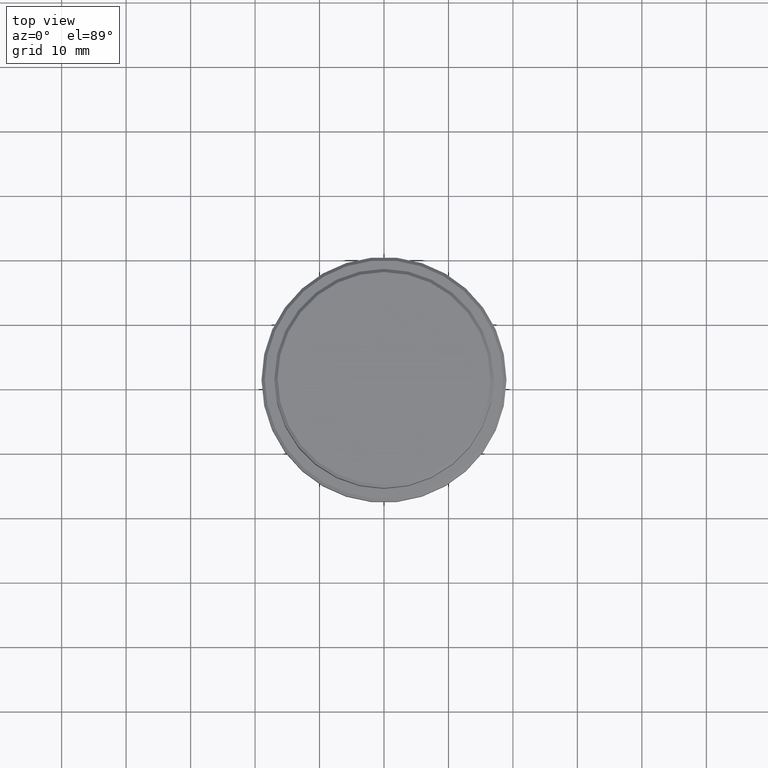
[diagram: clean part render]
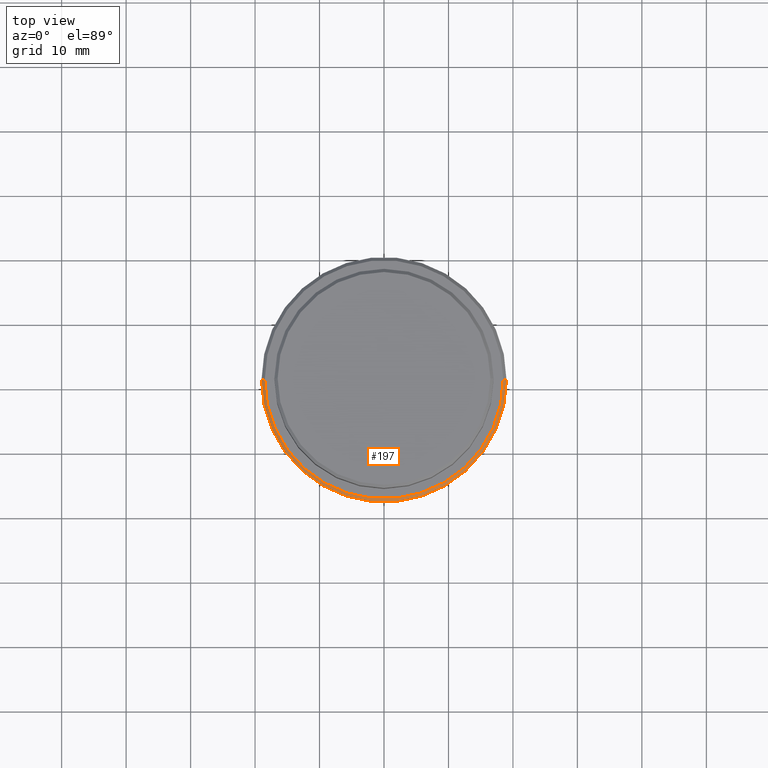
[diagram: same view with one face highlighted and labeled with its STEP entity id]
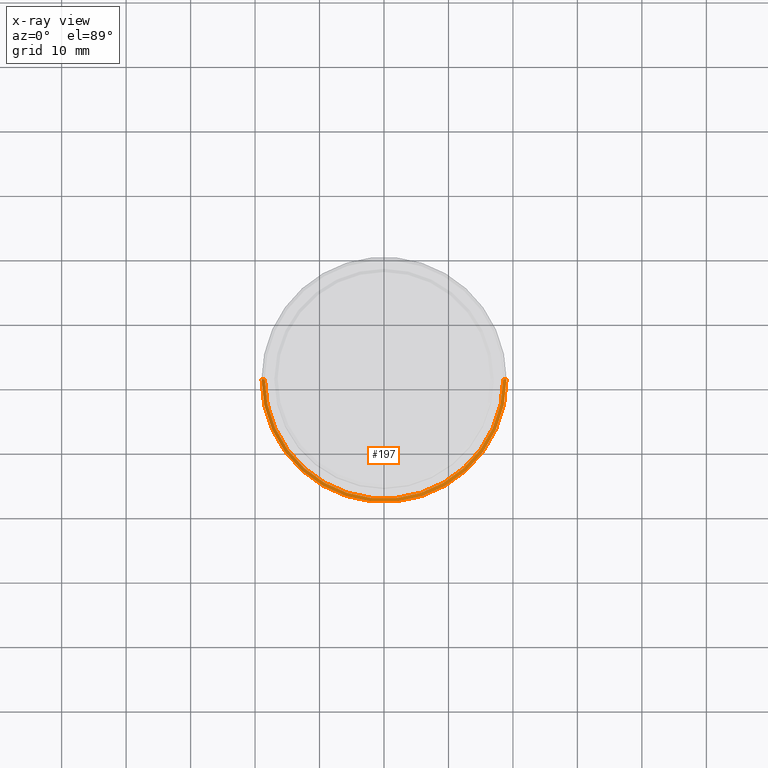
[diagram: x-ray of the same camera — body ghosted, the highlighted face saturated]
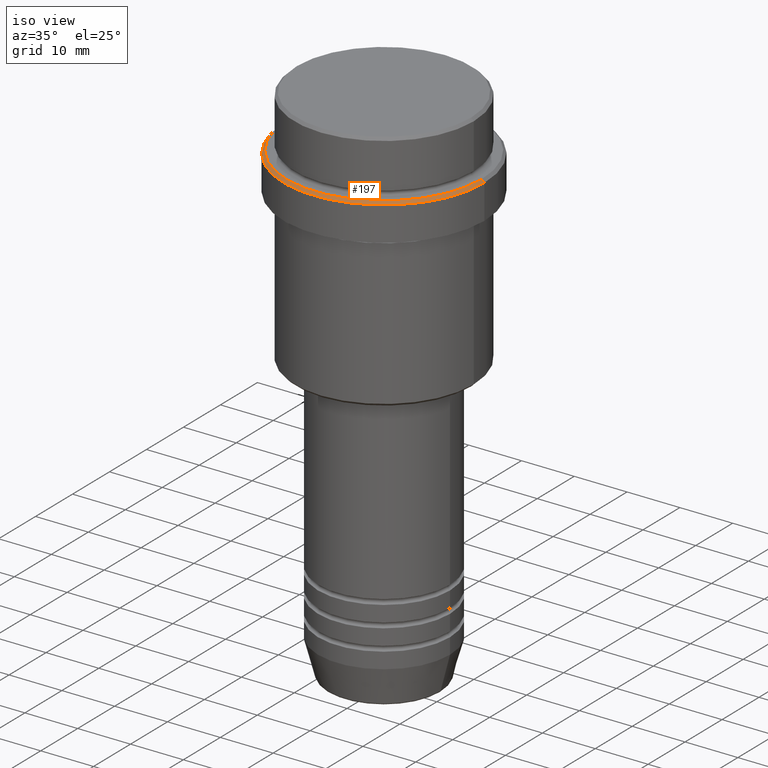
[diagram: same view with one face highlighted and labeled with its STEP entity id]
A machine part, top view. The second image highlights one B-rep face of the part: STEP entity #197.
The next image is the same camera in x-ray: the body ghosted, the highlighted face saturated — about 0% of this face is hidden behind the body in this view.
A second angle (iso view) of the same face is appended — the face is thin or edge-on in the first view.
In plain terms, the highlighted conical surface has half-angle 45 deg.
Its self-contained STEP definition (entity closure, byte-faithful):
#22 = CARTESIAN_POINT ( 'NONE',  ( 0.000000000000000000, 0.000000000000000000, -10.49999999999998224 ) ) ;
#37 = ORIENTED_EDGE ( 'NONE', *, *, #1309, .F. ) ;
#39 = EDGE_LOOP ( 'NONE', ( #1410, #315, #1042, #37 ) ) ;
#81 = VECTOR ( 'NONE', #809, 1000.000000000000114 ) ;
#197 = ADVANCED_FACE ( 'NONE', ( #1413 ), #671, .T. ) ;
#227 = CARTESIAN_POINT ( 'NONE',  ( 0.000000000000000000, 0.000000000000000000, -10.00000000000000178 ) ) ;
#239 = AXIS2_PLACEMENT_3D ( 'NONE', #227, #1406, #888 ) ;
#315 = ORIENTED_EDGE ( 'NONE', *, *, #399, .F. ) ;
#316 = EDGE_CURVE ( 'NONE', #348, #972, #1029, .T. ) ;
#348 = VERTEX_POINT ( 'NONE', #584 ) ;
#353 = DIRECTION ( 'NONE',  ( 1.000000000000000000, 0.000000000000000000, 0.000000000000000000 ) ) ;
#364 = CARTESIAN_POINT ( 'NONE',  ( 18.50000000000001776, 2.265596578422605368E-15, -10.00000000000000178 ) ) ;
#399 = EDGE_CURVE ( 'NONE', #348, #593, #1216, .T. ) ;
#461 = AXIS2_PLACEMENT_3D ( 'NONE', #676, #811, #1332 ) ;
#499 = VERTEX_POINT ( 'NONE', #945 ) ;
#584 = CARTESIAN_POINT ( 'NONE',  ( -18.50000000000001776, 0.000000000000000000, -10.00000000000000178 ) ) ;
#593 = VERTEX_POINT ( 'NONE', #748 ) ;
#671 = CONICAL_SURFACE ( 'NONE', #239, 18.50000000000001776, 0.7853981633974447263 ) ;
#676 = CARTESIAN_POINT ( 'NONE',  ( 0.000000000000000000, 0.000000000000000000, -10.00000000000000178 ) ) ;
#689 = LINE ( 'NONE', #364, #81 ) ;
#698 = AXIS2_PLACEMENT_3D ( 'NONE', #22, #1352, #353 ) ;
#702 = CARTESIAN_POINT ( 'NONE',  ( -18.50000000000001776, 0.000000000000000000, -10.00000000000000178 ) ) ;
#748 = CARTESIAN_POINT ( 'NONE',  ( 18.50000000000001776, 2.296212748401287578E-15, -10.00000000000000178 ) ) ;
#809 = DIRECTION ( 'NONE',  ( 0.7071067811865451302, 8.659560562354904508E-17, -0.7071067811865500152 ) ) ;
#811 = DIRECTION ( 'NONE',  ( -0.000000000000000000, -0.000000000000000000, 1.000000000000000000 ) ) ;
#858 = EDGE_CURVE ( 'NONE', #593, #499, #689, .T. ) ;
#888 = DIRECTION ( 'NONE',  ( -1.000000000000000000, 0.000000000000000000, 0.000000000000000000 ) ) ;
#945 = CARTESIAN_POINT ( 'NONE',  ( 18.99999999999999289, 0.000000000000000000, -10.49999999999998224 ) ) ;
#972 = VERTEX_POINT ( 'NONE', #1249 ) ;
#1000 = DIRECTION ( 'NONE',  ( -0.7071067811865451302, 0.000000000000000000, -0.7071067811865500152 ) ) ;
#1029 = LINE ( 'NONE', #702, #1103 ) ;
#1042 = ORIENTED_EDGE ( 'NONE', *, *, #316, .T. ) ;
#1103 = VECTOR ( 'NONE', #1000, 1000.000000000000114 ) ;
#1216 = CIRCLE ( 'NONE', #461, 18.50000000000001776 ) ;
#1240 = CIRCLE ( 'NONE', #698, 18.99999999999999289 ) ;
#1249 = CARTESIAN_POINT ( 'NONE',  ( -18.99999999999999289, 2.326828918379970182E-15, -10.49999999999998224 ) ) ;
#1309 = EDGE_CURVE ( 'NONE', #499, #972, #1240, .T. ) ;
#1332 = DIRECTION ( 'NONE',  ( 1.000000000000000000, 0.000000000000000000, 0.000000000000000000 ) ) ;
#1352 = DIRECTION ( 'NONE',  ( 0.000000000000000000, 0.000000000000000000, -1.000000000000000000 ) ) ;
#1406 = DIRECTION ( 'NONE',  ( 0.000000000000000000, 0.000000000000000000, -1.000000000000000000 ) ) ;
#1410 = ORIENTED_EDGE ( 'NONE', *, *, #858, .F. ) ;
#1413 = FACE_OUTER_BOUND ( 'NONE', #39, .T. ) ;